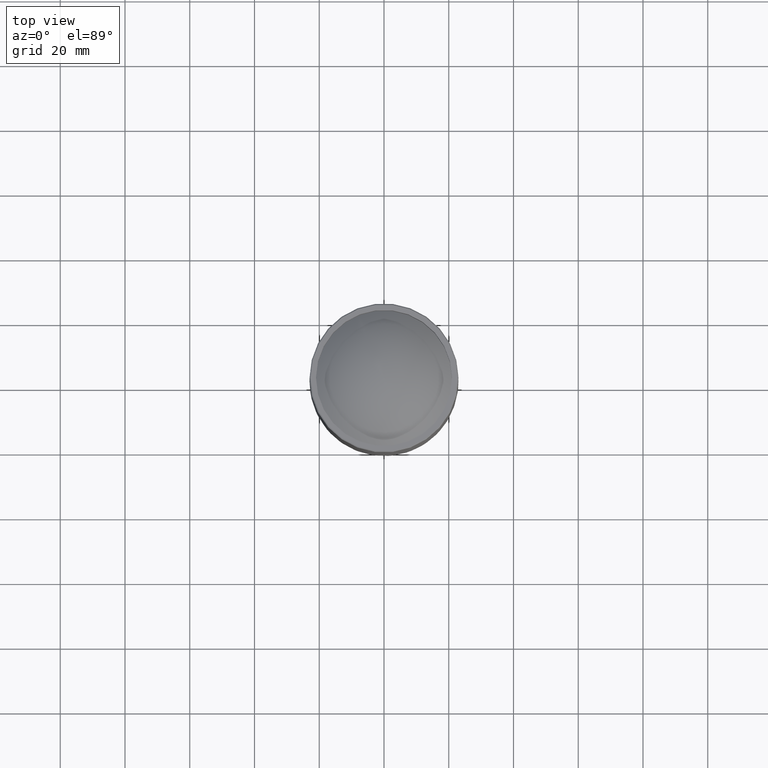
[diagram: clean part render]
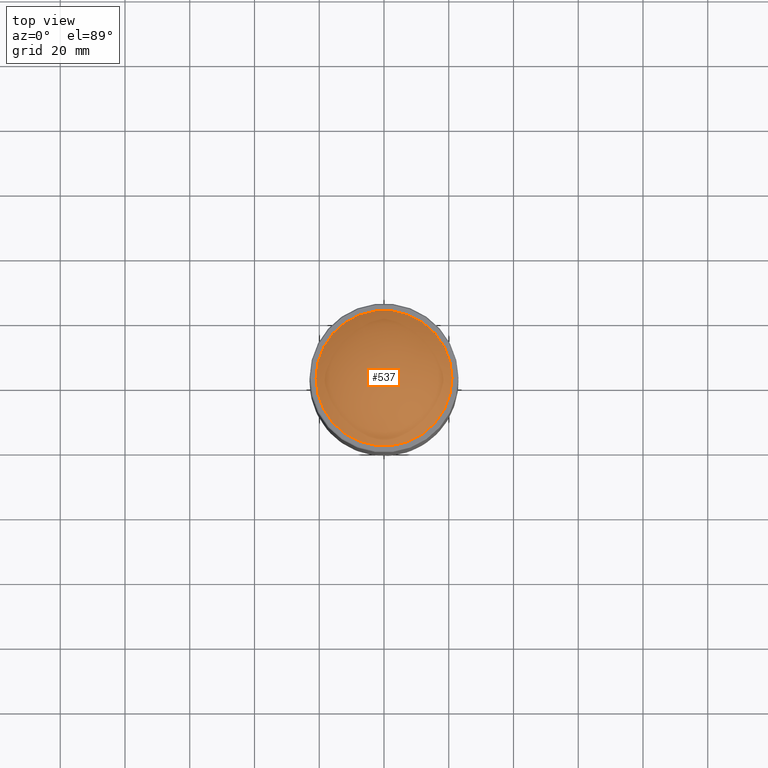
[diagram: same view with one face highlighted and labeled with its STEP entity id]
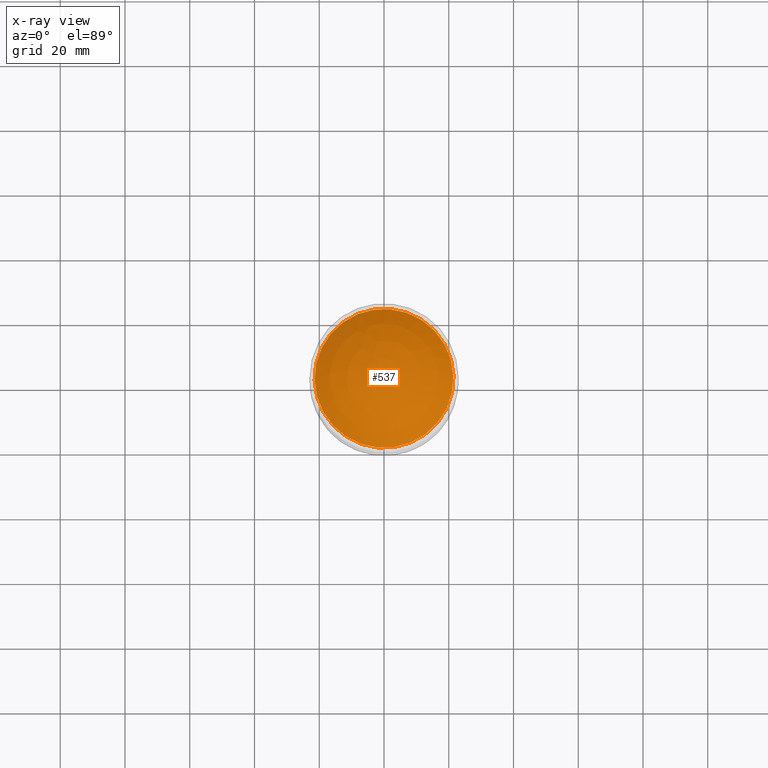
[diagram: x-ray of the same camera — body ghosted, the highlighted face saturated]
A machine part, top view. The second image highlights one B-rep face of the part: STEP entity #537.
The next image is the same camera in x-ray: the body ghosted, the highlighted face saturated — about 0% of this face is hidden behind the body in this view.
In plain terms, the highlighted spherical surface has radius 31.2095 mm.
Its self-contained STEP definition (entity closure, byte-faithful):
#29 = DIRECTION ( 'NONE',  ( -1.232595164407830946E-32, -1.318609258053555361E-16, -1.000000000000000000 ) ) ;
#35 = DIRECTION ( 'NONE',  ( 4.665676044949140993E-17, 1.934749774458438248E-17, 1.000000000000000000 ) ) ;
#303 = FACE_OUTER_BOUND ( 'NONE', #700, .T. ) ;
#340 = EDGE_CURVE ( 'NONE', #485, #485, #449, .T. ) ;
#403 = CARTESIAN_POINT ( 'NONE',  ( 0.000000000000000000, 0.000000000000000000, -534.6680567275546991 ) ) ;
#449 = CIRCLE ( 'NONE', #579, 21.45211006975307555 ) ;
#485 = VERTEX_POINT ( 'NONE', #918 ) ;
#537 = ADVANCED_FACE ( 'NONE', ( #303 ), #906, .T. ) ;
#579 = AXIS2_PLACEMENT_3D ( 'NONE', #618, #29, #896 ) ;
#618 = CARTESIAN_POINT ( 'NONE',  ( 0.000000000000000000, 6.938893903907228378E-15, -512.0000000000000000 ) ) ;
#700 = EDGE_LOOP ( 'NONE', ( #923 ) ) ;
#705 = DIRECTION ( 'NONE',  ( -0.3830490080632378835, 0.9237280213470681067, 0.000000000000000000 ) ) ;
#730 = AXIS2_PLACEMENT_3D ( 'NONE', #403, #35, #705 ) ;
#896 = DIRECTION ( 'NONE',  ( 0.3830490080632379390, -0.9237280213470682178, 0.000000000000000000 ) ) ;
#906 = SPHERICAL_SURFACE ( 'NONE', #730, 31.20951493132240273 ) ;
#918 = CARTESIAN_POINT ( 'NONE',  ( 8.217209483082314136, -19.81591518845251798, -512.0000000000000000 ) ) ;
#923 = ORIENTED_EDGE ( 'NONE', *, *, #340, .F. ) ;